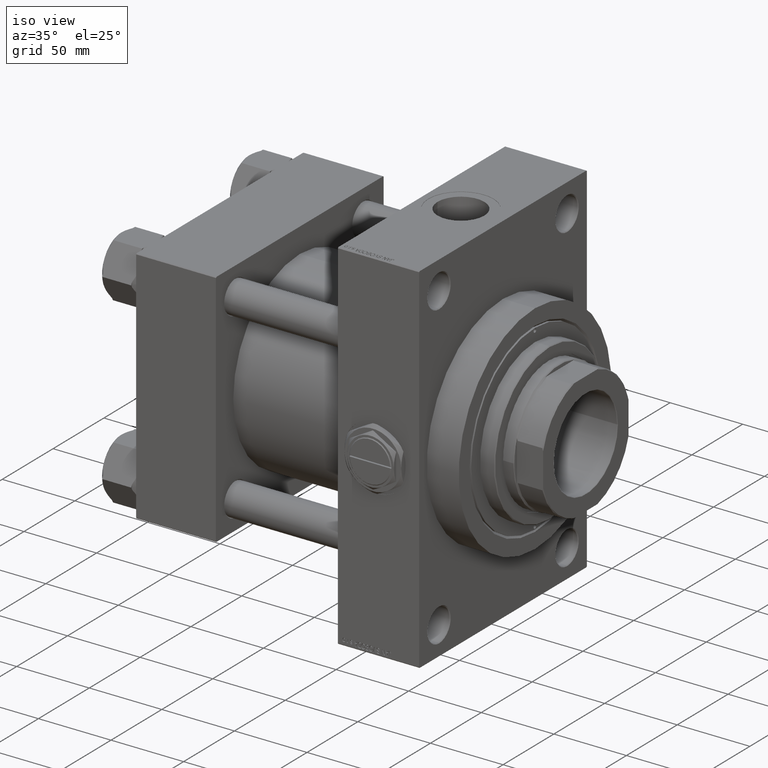
[diagram: clean part render]
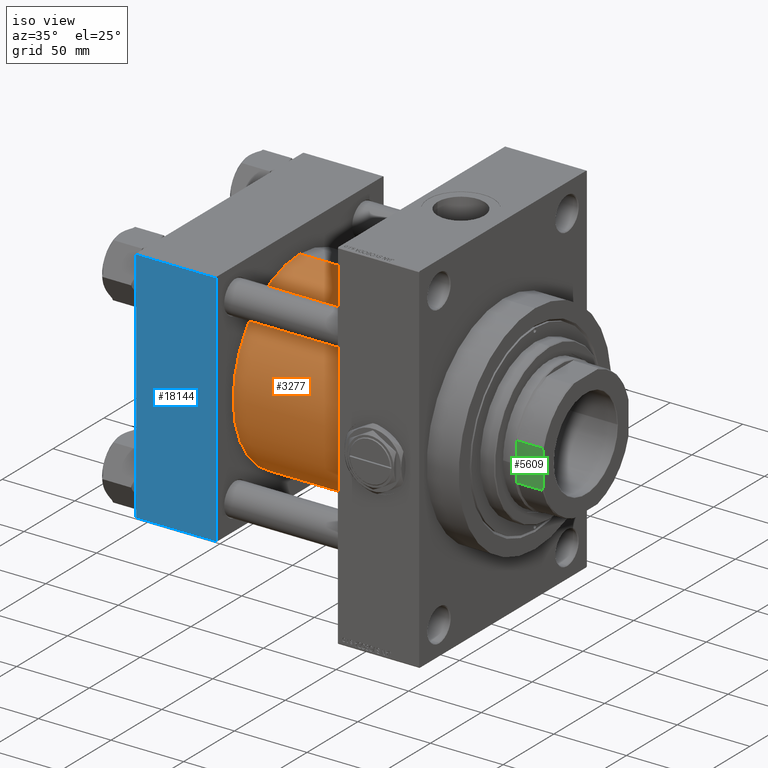
[diagram: same view with three faces highlighted in distinct colors, each labeled with its STEP entity id]
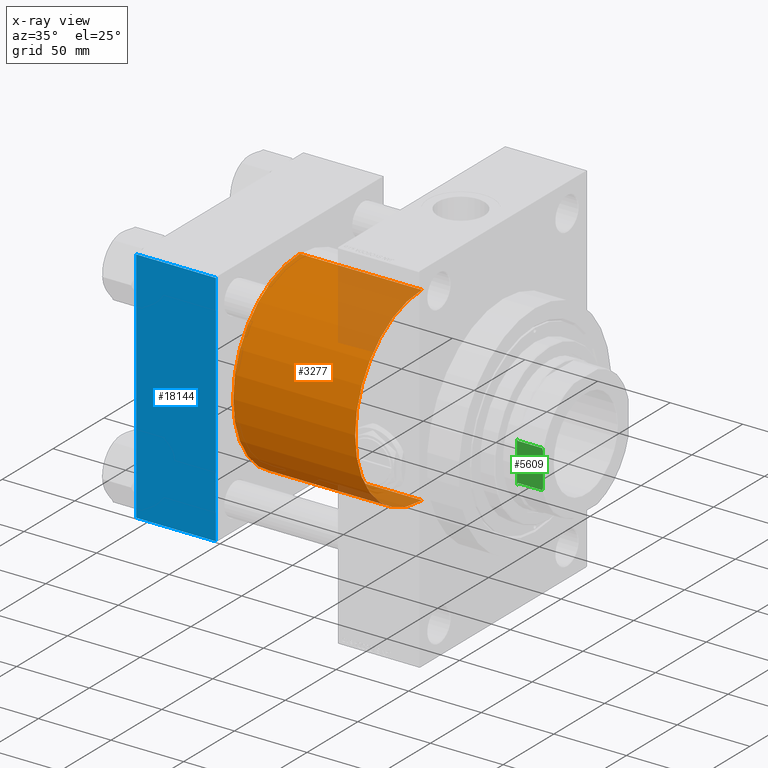
[diagram: x-ray of the same camera — body ghosted, the three highlighted faces saturated]
A machine part, iso view with three faces highlighted in distinct colors.
The next image is the same camera in x-ray (body ghosted, the three faces saturated) — at least one of them is partly hidden behind the body in this view.
Their STEP definitions:

[orange] entity #3277 — the highlighted cylindrical surface (partial cylindrical patch) has radius 65.5 mm, axis along (-1, -0, -0).
#17 = AXIS2_PLACEMENT_3D ( 'NONE', #32143, #32626, #12740 ) ;
#502 = DIRECTION ( 'NONE',  ( 0.000000000000000000, 0.000000000000000000, -1.000000000000000000 ) ) ;
#1879 = CARTESIAN_POINT ( 'NONE',  ( 54.99999999999999289, -2.602085213965210642E-15, 65.50000000000001421 ) ) ;
#3277 = ADVANCED_FACE ( 'NONE', ( #47211 ), #20263, .T. ) ;
#5392 = CARTESIAN_POINT ( 'NONE',  ( 139.0000000000000000, -2.602085213965210642E-15, 0.000000000000000000 ) ) ;
#9634 = VERTEX_POINT ( 'NONE', #37297 ) ;
#10772 = CARTESIAN_POINT ( 'NONE',  ( 139.0000000000000000, 5.419351320449953395E-15, -65.50000000000001421 ) ) ;
#11611 = DIRECTION ( 'NONE',  ( -1.000000000000000000, -0.000000000000000000, -0.000000000000000000 ) ) ;
#12530 = ORIENTED_EDGE ( 'NONE', *, *, #30168, .T. ) ;
#12740 = DIRECTION ( 'NONE',  ( 0.000000000000000000, 0.000000000000000000, 1.000000000000000000 ) ) ;
#13220 = EDGE_CURVE ( 'NONE', #22769, #40158, #46992, .T. ) ;
#14470 = CIRCLE ( 'NONE', #17, 65.50000000000001421 ) ;
#19629 = AXIS2_PLACEMENT_3D ( 'NONE', #5392, #31618, #36130 ) ;
#19646 = CARTESIAN_POINT ( 'NONE',  ( 139.0000000000000000, -2.602085213965210642E-15, 0.000000000000000000 ) ) ;
#20263 = CYLINDRICAL_SURFACE ( 'NONE', #19629, 65.50000000000001421 ) ;
#20705 = ORIENTED_EDGE ( 'NONE', *, *, #44496, .T. ) ;
#21529 = ORIENTED_EDGE ( 'NONE', *, *, #13220, .F. ) ;
#22769 = VERTEX_POINT ( 'NONE', #40309 ) ;
#23817 = LINE ( 'NONE', #32138, #40919 ) ;
#30168 = EDGE_CURVE ( 'NONE', #33679, #9634, #14470, .T. ) ;
#31618 = DIRECTION ( 'NONE',  ( -1.000000000000000000, -0.000000000000000000, -0.000000000000000000 ) ) ;
#32138 = CARTESIAN_POINT ( 'NONE',  ( 139.0000000000000000, -2.602085213965210642E-15, 65.50000000000001421 ) ) ;
#32143 = CARTESIAN_POINT ( 'NONE',  ( 54.99999999999999289, -2.602085213965210642E-15, 0.000000000000000000 ) ) ;
#32626 = DIRECTION ( 'NONE',  ( 1.000000000000000000, -0.000000000000000000, -0.000000000000000000 ) ) ;
#33679 = VERTEX_POINT ( 'NONE', #1879 ) ;
#35011 = DIRECTION ( 'NONE',  ( 1.000000000000000000, 0.000000000000000000, 0.000000000000000000 ) ) ;
#35620 = ORIENTED_EDGE ( 'NONE', *, *, #47564, .F. ) ;
#35768 = CARTESIAN_POINT ( 'NONE',  ( 139.0000000000000000, 5.419351320449953395E-15, -65.50000000000001421 ) ) ;
#36130 = DIRECTION ( 'NONE',  ( 0.000000000000000000, 0.000000000000000000, 1.000000000000000000 ) ) ;
#37297 = CARTESIAN_POINT ( 'NONE',  ( 54.99999999999999289, 5.419351320449953395E-15, -65.50000000000001421 ) ) ;
#37825 = VECTOR ( 'NONE', #11611, 1000.000000000000000 ) ;
#39052 = LINE ( 'NONE', #35768, #37825 ) ;
#40158 = VERTEX_POINT ( 'NONE', #10772 ) ;
#40309 = CARTESIAN_POINT ( 'NONE',  ( 139.0000000000000000, -2.602085213965210642E-15, 65.50000000000001421 ) ) ;
#40919 = VECTOR ( 'NONE', #47487, 1000.000000000000000 ) ;
#41378 = EDGE_LOOP ( 'NONE', ( #35620, #21529, #20705, #12530 ) ) ;
#41385 = AXIS2_PLACEMENT_3D ( 'NONE', #19646, #35011, #502 ) ;
#44496 = EDGE_CURVE ( 'NONE', #22769, #33679, #23817, .T. ) ;
#46992 = CIRCLE ( 'NONE', #41385, 65.50000000000001421 ) ;
#47211 = FACE_OUTER_BOUND ( 'NONE', #41378, .T. ) ;
#47487 = DIRECTION ( 'NONE',  ( -1.000000000000000000, -0.000000000000000000, -0.000000000000000000 ) ) ;
#47564 = EDGE_CURVE ( 'NONE', #40158, #9634, #39052, .T. ) ;

[blue] entity #18144 — the highlighted planar face has unit normal (0, 1, -0).
#1446 = VECTOR ( 'NONE', #34687, 1000.000000000000000 ) ;
#7583 = CARTESIAN_POINT ( 'NONE',  ( 0.000000000000000000, -82.49999999999997158, 82.00000000000001421 ) ) ;
#8867 = CARTESIAN_POINT ( 'NONE',  ( 0.000000000000000000, -82.50000000000000000, -81.99999999999998579 ) ) ;
#9441 = CARTESIAN_POINT ( 'NONE',  ( 55.00000000000000000, -82.50000000000000000, -81.99999999999998579 ) ) ;
#10807 = ORIENTED_EDGE ( 'NONE', *, *, #24721, .T. ) ;
#11796 = EDGE_CURVE ( 'NONE', #28262, #31867, #26898, .T. ) ;
#17263 = ORIENTED_EDGE ( 'NONE', *, *, #11796, .T. ) ;
#17544 = DIRECTION ( 'NONE',  ( 0.000000000000000000, 1.682156097916903588E-16, 1.000000000000000000 ) ) ;
#18144 = ADVANCED_FACE ( 'NONE', ( #44253 ), #48280, .F. ) ;
#21428 = CARTESIAN_POINT ( 'NONE',  ( 55.00000000000000000, -82.49999999999997158, 82.00000000000001421 ) ) ;
#24450 = DIRECTION ( 'NONE',  ( 1.000000000000000000, 0.000000000000000000, 0.000000000000000000 ) ) ;
#24721 = EDGE_CURVE ( 'NONE', #41386, #28262, #24968, .T. ) ;
#24785 = CARTESIAN_POINT ( 'NONE',  ( 55.00000000000000000, -82.49999999999997158, 82.00000000000001421 ) ) ;
#24968 = LINE ( 'NONE', #21428, #27292 ) ;
#25642 = EDGE_LOOP ( 'NONE', ( #17263, #34717, #44266, #10807 ) ) ;
#26898 = LINE ( 'NONE', #46278, #1446 ) ;
#27292 = VECTOR ( 'NONE', #32284, 1000.000000000000000 ) ;
#28262 = VERTEX_POINT ( 'NONE', #7583 ) ;
#28476 = CARTESIAN_POINT ( 'NONE',  ( 55.00000000000000000, -82.49999999999997158, 82.50000000000001421 ) ) ;
#29915 = LINE ( 'NONE', #28476, #34483 ) ;
#31867 = VERTEX_POINT ( 'NONE', #8867 ) ;
#32284 = DIRECTION ( 'NONE',  ( -1.000000000000000000, 0.000000000000000000, 0.000000000000000000 ) ) ;
#32429 = DIRECTION ( 'NONE',  ( 0.000000000000000000, 1.000000000000000000, -1.682156097916903588E-16 ) ) ;
#34483 = VECTOR ( 'NONE', #37203, 1000.000000000000000 ) ;
#34687 = DIRECTION ( 'NONE',  ( 0.000000000000000000, -1.682156097916903588E-16, -1.000000000000000000 ) ) ;
#34717 = ORIENTED_EDGE ( 'NONE', *, *, #35805, .T. ) ;
#35805 = EDGE_CURVE ( 'NONE', #31867, #44457, #42598, .T. ) ;
#37203 = DIRECTION ( 'NONE',  ( 0.000000000000000000, -1.682156097916903588E-16, -1.000000000000000000 ) ) ;
#38033 = VECTOR ( 'NONE', #24450, 1000.000000000000000 ) ;
#38814 = CARTESIAN_POINT ( 'NONE',  ( 55.00000000000000000, -82.50000000000000000, -81.99999999999998579 ) ) ;
#41386 = VERTEX_POINT ( 'NONE', #24785 ) ;
#42598 = LINE ( 'NONE', #38814, #38033 ) ;
#44253 = FACE_OUTER_BOUND ( 'NONE', #25642, .T. ) ;
#44266 = ORIENTED_EDGE ( 'NONE', *, *, #44334, .F. ) ;
#44334 = EDGE_CURVE ( 'NONE', #41386, #44457, #29915, .T. ) ;
#44457 = VERTEX_POINT ( 'NONE', #9441 ) ;
#46278 = CARTESIAN_POINT ( 'NONE',  ( 0.000000000000000000, -82.49999999999997158, 82.50000000000001421 ) ) ;
#46382 = AXIS2_PLACEMENT_3D ( 'NONE', #47288, #32429, #17544 ) ;
#47288 = CARTESIAN_POINT ( 'NONE',  ( 55.00000000000000000, -82.49999999999997158, 82.50000000000001421 ) ) ;
#48280 = PLANE ( 'NONE',  #46382 ) ;

[green] entity #5609 — the highlighted planar face has unit normal (0, 1, 0).
#757 = DIRECTION ( 'NONE',  ( -0.000000000000000000, -0.000000000000000000, 1.000000000000000000 ) ) ;
#1183 = CARTESIAN_POINT ( 'NONE',  ( 42.00000000000000000, -14.70544116985251826, 179.0000000000000000 ) ) ;
#1283 = CARTESIAN_POINT ( 'NONE',  ( 42.00000000000000000, 42.00000000000000711, 179.0000000000000000 ) ) ;
#2422 = CARTESIAN_POINT ( 'NONE',  ( 42.00000000000000711, -11.32475165290550834, 196.9999999999999716 ) ) ;
#2596 = EDGE_CURVE ( 'NONE', #45900, #36797, #16645, .T. ) ;
#4700 = ORIENTED_EDGE ( 'NONE', *, *, #41963, .T. ) ;
#4925 = DIRECTION ( 'NONE',  ( -1.000000000000000000, -1.652117596168387263E-16, 0.000000000000000000 ) ) ;
#5609 = ADVANCED_FACE ( 'NONE', ( #47232 ), #12986, .F. ) ;
#6495 = CARTESIAN_POINT ( 'NONE',  ( 42.00000000000000000, 13.11487704860398473, 196.4999999999997442 ) ) ;
#6528 = VERTEX_POINT ( 'NONE', #38128 ) ;
#6820 = CARTESIAN_POINT ( 'NONE',  ( 42.00000000000000000, 13.64897575764567250, 179.3408036613431022 ) ) ;
#6988 = CARTESIAN_POINT ( 'NONE',  ( 42.00000000000000711, 11.32475165290544794, 196.9999999999999716 ) ) ;
#8204 = CARTESIAN_POINT ( 'NONE',  ( 42.00000000000000711, 11.32475165290544794, 196.9999999999999716 ) ) ;
#11754 = EDGE_CURVE ( 'NONE', #36763, #6528, #35264, .T. ) ;
#12986 = PLANE ( 'NONE',  #26188 ) ;
#13597 = LINE ( 'NONE', #40555, #39040 ) ;
#13673 = B_SPLINE_CURVE_WITH_KNOTS ( 'NONE', 3,
 ( #40395, #28568, #16473, #28816 ),
 .UNSPECIFIED., .F., .F.,
 ( 4, 4 ),
 ( 0.1441993541697251247, 0.1458616311433945656 ),
 .UNSPECIFIED. ) ;
#13745 = CARTESIAN_POINT ( 'NONE',  ( 42.00000000000000711, -11.32475165290550834, 196.9999999999999716 ) ) ;
#14001 = CARTESIAN_POINT ( 'NONE',  ( 42.00000000000000000, -13.11487704860398651, 196.4999999999997442 ) ) ;
#14822 = EDGE_CURVE ( 'NONE', #41189, #49815, #13597, .T. ) ;
#15927 = VECTOR ( 'NONE', #757, 1000.000000000000000 ) ;
#16473 = CARTESIAN_POINT ( 'NONE',  ( 42.00000000000000000, -14.17668678407865457, 179.1747318317595159 ) ) ;
#16503 = CARTESIAN_POINT ( 'NONE',  ( 42.00000000000000000, 42.00000000000000711, 196.9999999999999716 ) ) ;
#16645 = LINE ( 'NONE', #1283, #23618 ) ;
#17541 = B_SPLINE_CURVE_WITH_KNOTS ( 'NONE', 3,
 ( #2422, #48511, #17780, #14001 ),
 .UNSPECIFIED., .F., .F.,
 ( 4, 4 ),
 ( 1.734723475976807094E-18, 0.001858641690139559936 ),
 .UNSPECIFIED. ) ;
#17780 = CARTESIAN_POINT ( 'NONE',  ( 42.00000000000000711, -12.52105423598748501, 196.6769980267298479 ) ) ;
#18075 = CARTESIAN_POINT ( 'NONE',  ( 42.00000000000000000, 12.52105423598747613, 196.6769980267298479 ) ) ;
#18560 = ORIENTED_EDGE ( 'NONE', *, *, #28027, .T. ) ;
#21310 = CARTESIAN_POINT ( 'NONE',  ( 42.00000000000000000, 13.11487704860398473, -0.001000000000001000089 ) ) ;
#21907 = DIRECTION ( 'NONE',  ( -1.652117596168387263E-16, 1.000000000000000000, -0.000000000000000000 ) ) ;
#22042 = ORIENTED_EDGE ( 'NONE', *, *, #2596, .T. ) ;
#23618 = VECTOR ( 'NONE', #35798, 1000.000000000000000 ) ;
#24661 = ORIENTED_EDGE ( 'NONE', *, *, #11754, .F. ) ;
#25979 = CARTESIAN_POINT ( 'NONE',  ( 42.00000000000000000, 13.11487704860398473, 179.4999999999998579 ) ) ;
#26188 = AXIS2_PLACEMENT_3D ( 'NONE', #16503, #4925, #31394 ) ;
#26333 = VECTOR ( 'NONE', #47522, 1000.000000000000000 ) ;
#26777 = EDGE_LOOP ( 'NONE', ( #4700, #42413, #43276, #18560, #24661, #37909, #22042, #34492 ) ) ;
#28027 = EDGE_CURVE ( 'NONE', #41189, #6528, #17541, .T. ) ;
#28568 = CARTESIAN_POINT ( 'NONE',  ( 42.00000000000000000, -13.64652296432347711, 179.3415347541350684 ) ) ;
#28816 = CARTESIAN_POINT ( 'NONE',  ( 42.00000000000000000, -14.70544116985251826, 179.0000000000000000 ) ) ;
#29769 = CARTESIAN_POINT ( 'NONE',  ( 42.00000000000000000, 14.70544116985250227, 179.0000000000000000 ) ) ;
#31394 = DIRECTION ( 'NONE',  ( 1.652117596168387263E-16, -1.000000000000000000, 0.000000000000000000 ) ) ;
#31521 = VERTEX_POINT ( 'NONE', #47027 ) ;
#31883 = EDGE_CURVE ( 'NONE', #36797, #31521, #47912, .T. ) ;
#32171 = LINE ( 'NONE', #21310, #26333 ) ;
#34492 = ORIENTED_EDGE ( 'NONE', *, *, #31883, .T. ) ;
#35264 = LINE ( 'NONE', #41651, #15927 ) ;
#35798 = DIRECTION ( 'NONE',  ( -1.652117596168387263E-16, 1.000000000000000000, -0.000000000000000000 ) ) ;
#36763 = VERTEX_POINT ( 'NONE', #38396 ) ;
#36797 = VERTEX_POINT ( 'NONE', #48107 ) ;
#37909 = ORIENTED_EDGE ( 'NONE', *, *, #41384, .T. ) ;
#38128 = CARTESIAN_POINT ( 'NONE',  ( 42.00000000000000000, -13.11487704860398651, 196.4999999999997442 ) ) ;
#38396 = CARTESIAN_POINT ( 'NONE',  ( 42.00000000000000000, -13.11487704860398651, 179.4999999999999147 ) ) ;
#39040 = VECTOR ( 'NONE', #21907, 1000.000000000000000 ) ;
#40174 = EDGE_CURVE ( 'NONE', #49834, #49815, #49183, .T. ) ;
#40395 = CARTESIAN_POINT ( 'NONE',  ( 42.00000000000000000, -13.11487704860398651, 179.4999999999999147 ) ) ;
#40555 = CARTESIAN_POINT ( 'NONE',  ( 42.00000000000000000, 42.00000000000000711, 196.9999999999999716 ) ) ;
#41189 = VERTEX_POINT ( 'NONE', #13745 ) ;
#41384 = EDGE_CURVE ( 'NONE', #36763, #45900, #13673, .T. ) ;
#41651 = CARTESIAN_POINT ( 'NONE',  ( 42.00000000000000000, -13.11487704860398651, -0.001000000000001000089 ) ) ;
#41963 = EDGE_CURVE ( 'NONE', #31521, #49834, #32171, .T. ) ;
#42413 = ORIENTED_EDGE ( 'NONE', *, *, #40174, .T. ) ;
#43209 = CARTESIAN_POINT ( 'NONE',  ( 42.00000000000000000, 13.11487704860398473, 196.4999999999997442 ) ) ;
#43276 = ORIENTED_EDGE ( 'NONE', *, *, #14822, .F. ) ;
#45900 = VERTEX_POINT ( 'NONE', #1183 ) ;
#47027 = CARTESIAN_POINT ( 'NONE',  ( 42.00000000000000000, 13.11487704860398473, 179.4999999999998579 ) ) ;
#47232 = FACE_OUTER_BOUND ( 'NONE', #26777, .T. ) ;
#47522 = DIRECTION ( 'NONE',  ( -0.000000000000000000, -0.000000000000000000, 1.000000000000000000 ) ) ;
#47912 = B_SPLINE_CURVE_WITH_KNOTS ( 'NONE', 3,
 ( #29769, #48630, #6820, #25979 ),
 .UNSPECIFIED., .F., .F.,
 ( 4, 4 ),
 ( 0.1921110922802836130, 0.1937661417806191000 ),
 .UNSPECIFIED. ) ;
#48107 = CARTESIAN_POINT ( 'NONE',  ( 42.00000000000000000, 14.70544116985250227, 179.0000000000000000 ) ) ;
#48511 = CARTESIAN_POINT ( 'NONE',  ( 42.00000000000000711, -11.92440761087188328, 196.8438860965251820 ) ) ;
#48630 = CARTESIAN_POINT ( 'NONE',  ( 42.00000000000000000, 14.17906395644904727, 179.1739462729180730 ) ) ;
#48805 = CARTESIAN_POINT ( 'NONE',  ( 42.00000000000000711, 11.92440761087183532, 196.8438860965251820 ) ) ;
#49183 = B_SPLINE_CURVE_WITH_KNOTS ( 'NONE', 3,
 ( #6495, #18075, #48805, #6988 ),
 .UNSPECIFIED., .F., .F.,
 ( 4, 4 ),
 ( 1.387778780781445521E-17, 0.001858641690139605472 ),
 .UNSPECIFIED. ) ;
#49815 = VERTEX_POINT ( 'NONE', #8204 ) ;
#49834 = VERTEX_POINT ( 'NONE', #43209 ) ;